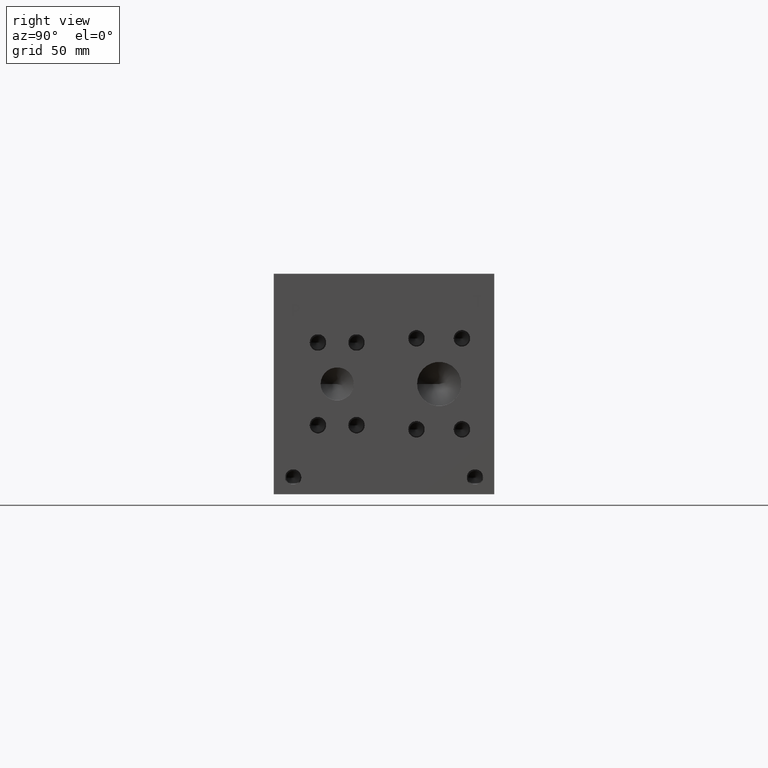
[diagram: clean part render]
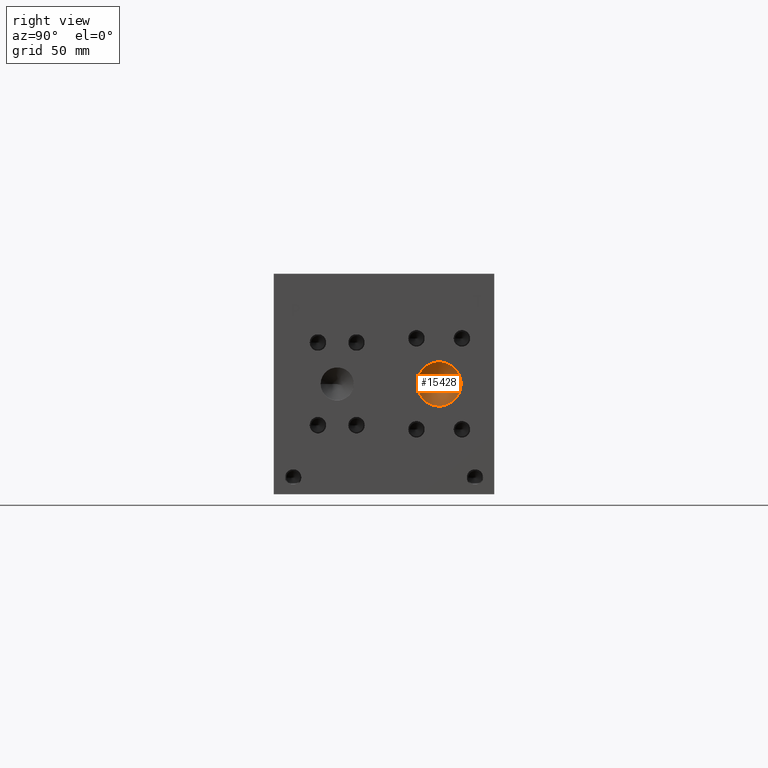
[diagram: same view with one face highlighted and labeled with its STEP entity id]
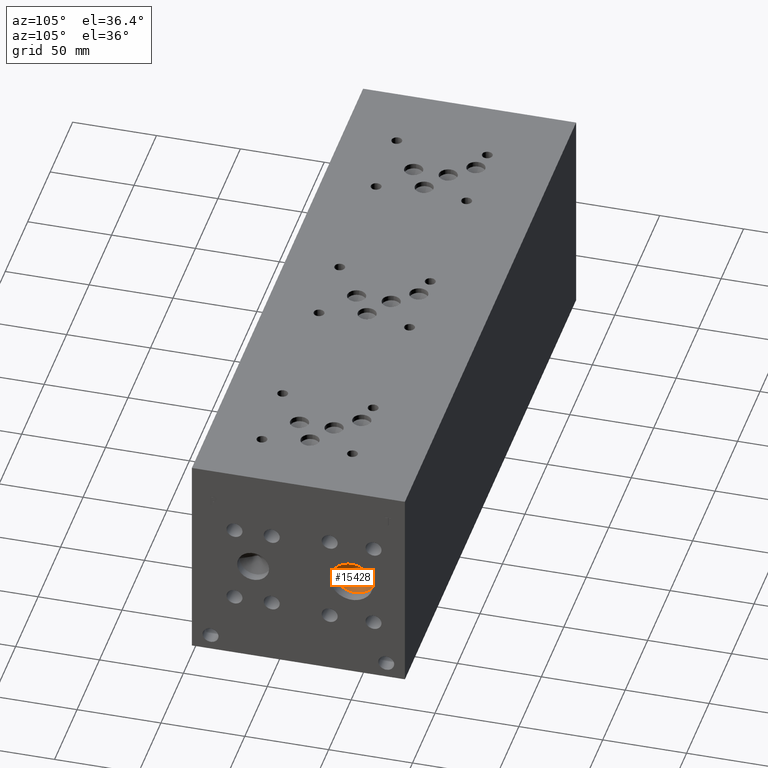
[diagram: same view with one face highlighted and labeled with its STEP entity id]
A machine part, right view. The second image highlights one B-rep face of the part: STEP entity #15428.
A second angle (auxiliary view) of the same face is appended — the face is thin or edge-on in the first view.
In plain terms, the highlighted conical surface has half-angle 60 deg.
Its self-contained STEP definition (entity closure, byte-faithful):
#164=CONICAL_SURFACE('',#16251,6.35,1.0471975511966);
#397=CIRCLE('',#16252,12.7);
#398=CIRCLE('',#16253,12.7);
#1916=FACE_OUTER_BOUND('',#2843,.T.);
#2843=EDGE_LOOP('',(#13012,#13013,#13014,#13015));
#4301=LINE('',#25949,#5635);
#5635=VECTOR('',#19112,6.35);
#7291=VERTEX_POINT('',#25945);
#7292=VERTEX_POINT('',#25946);
#7293=VERTEX_POINT('',#25948);
#9331=EDGE_CURVE('',#7291,#7292,#397,.T.);
#9332=EDGE_CURVE('',#7292,#7293,#4301,.T.);
#9333=EDGE_CURVE('',#7292,#7291,#398,.T.);
#13012=ORIENTED_EDGE('',*,*,#9331,.T.);
#13013=ORIENTED_EDGE('',*,*,#9332,.T.);
#13014=ORIENTED_EDGE('',*,*,#9332,.F.);
#13015=ORIENTED_EDGE('',*,*,#9333,.T.);
#15428=ADVANCED_FACE('',(#1916),#164,.F.);
#16251=AXIS2_PLACEMENT_3D('',#25944,#19108,#19109);
#16252=AXIS2_PLACEMENT_3D('',#25947,#19110,#19111);
#16253=AXIS2_PLACEMENT_3D('',#25950,#19113,#19114);
#19108=DIRECTION('center_axis',(1.,0.,0.));
#19109=DIRECTION('ref_axis',(0.,1.,0.));
#19110=DIRECTION('center_axis',(1.,0.,0.));
#19111=DIRECTION('ref_axis',(0.,1.,0.));
#19112=DIRECTION('',(-0.5,0.866025403784439,1.06057523872491E-16));
#19113=DIRECTION('center_axis',(1.,0.,0.));
#19114=DIRECTION('ref_axis',(0.,1.,0.));
#25944=CARTESIAN_POINT('Origin',(370.001475790646,95.25,63.5));
#25945=CARTESIAN_POINT('',(373.66765,107.95,63.5));
#25946=CARTESIAN_POINT('',(373.66765,82.55,63.5));
#25947=CARTESIAN_POINT('Origin',(373.66765,95.25,63.5));
#25948=CARTESIAN_POINT('',(366.335301581292,95.25,63.5));
#25949=CARTESIAN_POINT('',(370.001475790646,88.9,63.5));
#25950=CARTESIAN_POINT('Origin',(373.66765,95.25,63.5));